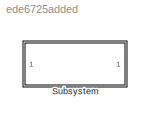
MODEL slx_ede6725added
KIND model
CONFIG AbsTol = auto
CONFIG EnableMultiTasking = off
CONFIG FixedStep = auto
CONFIG MaxStep = auto
CONFIG MinStep = auto
CONFIG RelTol = 1e-3
CONFIG SampleTimeConstraint = Unconstrained
CONFIG SolverName = VariableStepAuto
CONFIG StartTime = 0.0
CONFIG StopTime = 1
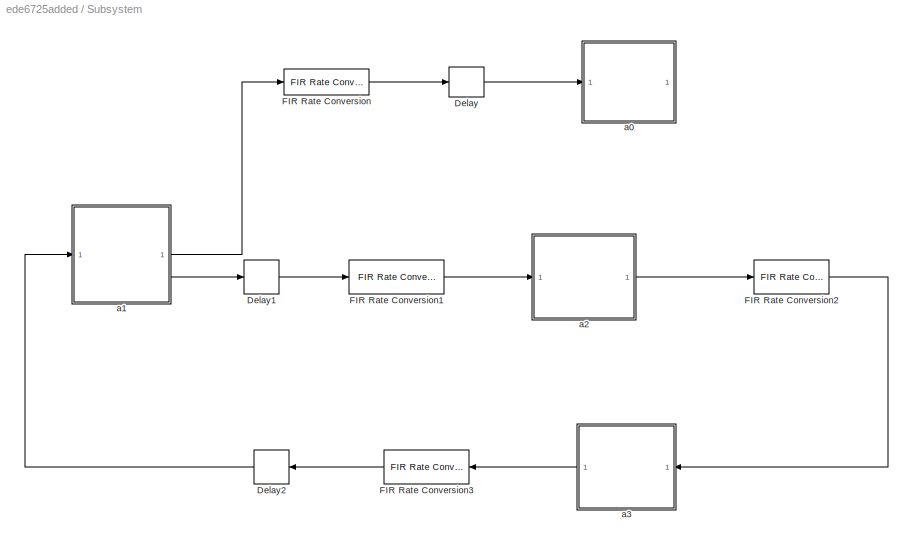
BLOCK [SubSystem] Subsystem
BLOCK [Delay] Subsystem/Delay
  DelayLength = 4
  InputPortMap = u0
BLOCK [Delay] Subsystem/Delay1
  InputPortMap = u0
BLOCK [Delay] Subsystem/Delay2
  DelayLength = 4
  InputPortMap = u0
BLOCK [Reference] Subsystem/FIR Rate Conversion  REF=dspmlti4/FIR Rate
Conversion
  SourceBlock = dspmlti4/FIR Rate\nConversion
  SourceType = FIR Rate Conversion
BLOCK [Reference] Subsystem/FIR Rate Conversion1  REF=dspmlti4/FIR Rate
Conversion
  SourceBlock = dspmlti4/FIR Rate\nConversion
  SourceType = FIR Rate Conversion
BLOCK [Reference] Subsystem/FIR Rate Conversion2  REF=dspmlti4/FIR Rate
Conversion
  SourceBlock = dspmlti4/FIR Rate\nConversion
  SourceType = FIR Rate Conversion
BLOCK [Reference] Subsystem/FIR Rate Conversion3  REF=dspmlti4/FIR Rate
Conversion
  SourceBlock = dspmlti4/FIR Rate\nConversion
  SourceType = FIR Rate Conversion
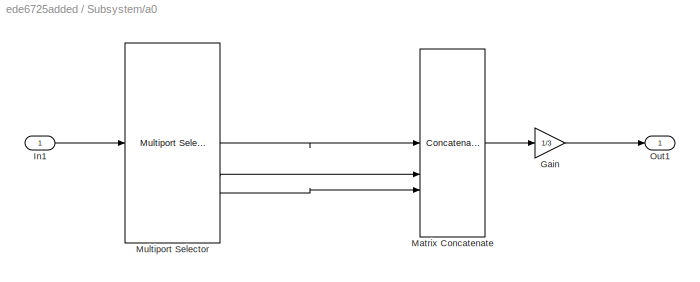
BLOCK [SubSystem] Subsystem/a0
BLOCK [Gain] Subsystem/a0/Gain
  Gain = 1/3
BLOCK [Inport] Subsystem/a0/In1
BLOCK [Concatenate] Subsystem/a0/Matrix Concatenate
  ConcatenateDimension = 2
  NumInputs = 3
BLOCK [Reference] Subsystem/a0/Multiport Selector  REF=dspindex/Multiport
Selector
  LibrarySourceBlock = dsphdlsupportsigmgmt/Multiport\nSelector
  SourceBlock = dspindex/Multiport\nSelector
  SourceType = Multiport Selector
BLOCK [Outport] Subsystem/a0/Out1
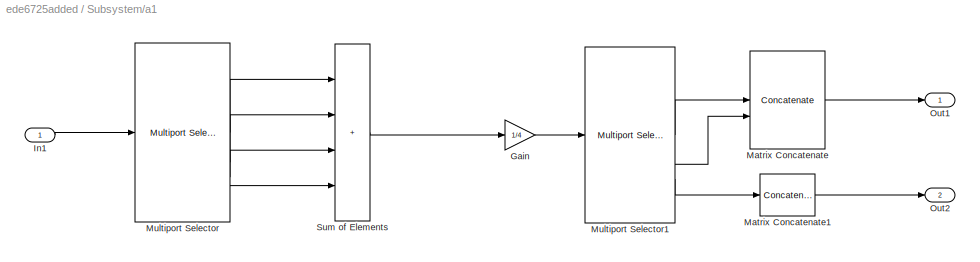
BLOCK [SubSystem] Subsystem/a1
BLOCK [Gain] Subsystem/a1/Gain
  Gain = 1/4
BLOCK [Inport] Subsystem/a1/In1
BLOCK [Concatenate] Subsystem/a1/Matrix Concatenate
  ConcatenateDimension = 2
BLOCK [Concatenate] Subsystem/a1/Matrix Concatenate1
  ConcatenateDimension = 2
  NumInputs = 1
BLOCK [Reference] Subsystem/a1/Multiport Selector  REF=dspindex/Multiport
Selector
  LibrarySourceBlock = dsphdlsupportsigmgmt/Multiport\nSelector
  SourceBlock = dspindex/Multiport\nSelector
  SourceType = Multiport Selector
BLOCK [Reference] Subsystem/a1/Multiport Selector1  REF=dspindex/Multiport
Selector
  LibrarySourceBlock = dsphdlsupportsigmgmt/Multiport\nSelector
  SourceBlock = dspindex/Multiport\nSelector
  SourceType = Multiport Selector
BLOCK [Outport] Subsystem/a1/Out1
BLOCK [Outport] Subsystem/a1/Out2
  Port = 2
BLOCK [Sum] Subsystem/a1/Sum of Elements
  IconShape = rectangular
  Inputs = ++++
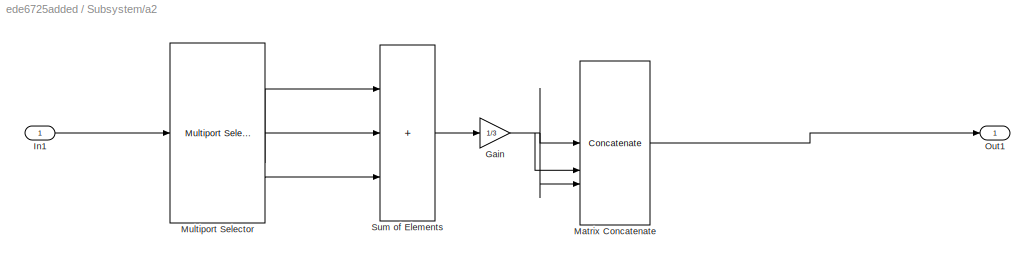
BLOCK [SubSystem] Subsystem/a2
BLOCK [Gain] Subsystem/a2/Gain
  Gain = 1/3
BLOCK [Inport] Subsystem/a2/In1
BLOCK [Concatenate] Subsystem/a2/Matrix Concatenate
  ConcatenateDimension = 2
  NumInputs = 3
BLOCK [Reference] Subsystem/a2/Multiport Selector  REF=dspindex/Multiport
Selector
  LibrarySourceBlock = dsphdlsupportsigmgmt/Multiport\nSelector
  SourceBlock = dspindex/Multiport\nSelector
  SourceType = Multiport Selector
BLOCK [Outport] Subsystem/a2/Out1
BLOCK [Sum] Subsystem/a2/Sum of Elements
  IconShape = rectangular
  Inputs = +++
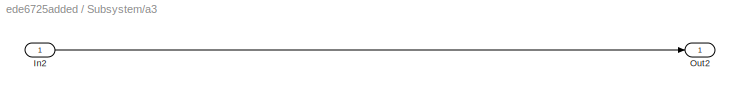
BLOCK [SubSystem] Subsystem/a3
BLOCK [Inport] Subsystem/a3/In2
BLOCK [Outport] Subsystem/a3/Out2
LINE Subsystem/Delay1:1 -> Subsystem/FIR Rate Conversion1:1
LINE Subsystem/Delay2:1 -> Subsystem/a1:1
LINE Subsystem/Delay:1 -> Subsystem/a0:1
LINE Subsystem/FIR Rate Conversion1:1 -> Subsystem/a2:1
LINE Subsystem/FIR Rate Conversion2:1 -> Subsystem/a3:1
LINE Subsystem/FIR Rate Conversion3:1 -> Subsystem/Delay2:1
LINE Subsystem/FIR Rate Conversion:1 -> Subsystem/Delay:1
LINE Subsystem/a0/Gain:1 -> Subsystem/a0/Out1:1
LINE Subsystem/a0/In1:1 -> Subsystem/a0/Multiport Selector:1
LINE Subsystem/a0/Matrix Concatenate:1 -> Subsystem/a0/Gain:1
LINE Subsystem/a0/Multiport Selector:1 -> Subsystem/a0/Matrix Concatenate:1
LINE Subsystem/a0/Multiport Selector:2 -> Subsystem/a0/Matrix Concatenate:2
LINE Subsystem/a0/Multiport Selector:3 -> Subsystem/a0/Matrix Concatenate:3
LINE Subsystem/a1/Gain:1 -> Subsystem/a1/Multiport Selector1:1
LINE Subsystem/a1/In1:1 -> Subsystem/a1/Multiport Selector:1
LINE Subsystem/a1/Matrix Concatenate1:1 -> Subsystem/a1/Out2:1
LINE Subsystem/a1/Matrix Concatenate:1 -> Subsystem/a1/Out1:1
LINE Subsystem/a1/Multiport Selector1:1 -> Subsystem/a1/Matrix Concatenate:1
LINE Subsystem/a1/Multiport Selector1:2 -> Subsystem/a1/Matrix Concatenate:2
LINE Subsystem/a1/Multiport Selector1:3 -> Subsystem/a1/Matrix Concatenate1:1
LINE Subsystem/a1/Multiport Selector:1 -> Subsystem/a1/Sum of Elements:1
LINE Subsystem/a1/Multiport Selector:2 -> Subsystem/a1/Sum of Elements:2
LINE Subsystem/a1/Multiport Selector:3 -> Subsystem/a1/Sum of Elements:3
LINE Subsystem/a1/Multiport Selector:4 -> Subsystem/a1/Sum of Elements:4
LINE Subsystem/a1/Sum of Elements:1 -> Subsystem/a1/Gain:1
LINE Subsystem/a1:1 -> Subsystem/FIR Rate Conversion:1
LINE Subsystem/a1:2 -> Subsystem/Delay1:1
NET Subsystem/a2/Gain:1 -> Subsystem/a2/Matrix Concatenate:1, Subsystem/a2/Matrix Concatenate:2, Subsystem/a2/Matrix Concatenate:3
LINE Subsystem/a2/In1:1 -> Subsystem/a2/Multiport Selector:1
LINE Subsystem/a2/Matrix Concatenate:1 -> Subsystem/a2/Out1:1
LINE Subsystem/a2/Multiport Selector:1 -> Subsystem/a2/Sum of Elements:1
LINE Subsystem/a2/Multiport Selector:2 -> Subsystem/a2/Sum of Elements:2
LINE Subsystem/a2/Multiport Selector:3 -> Subsystem/a2/Sum of Elements:3
LINE Subsystem/a2/Sum of Elements:1 -> Subsystem/a2/Gain:1
LINE Subsystem/a2:1 -> Subsystem/FIR Rate Conversion2:1
LINE Subsystem/a3/In2:1 -> Subsystem/a3/Out2:1
LINE Subsystem/a3:1 -> Subsystem/FIR Rate Conversion3:1
note: NET lines group one-source signal fan-out (src -> all destinations, sorted); 1:1 wires keep LINE
